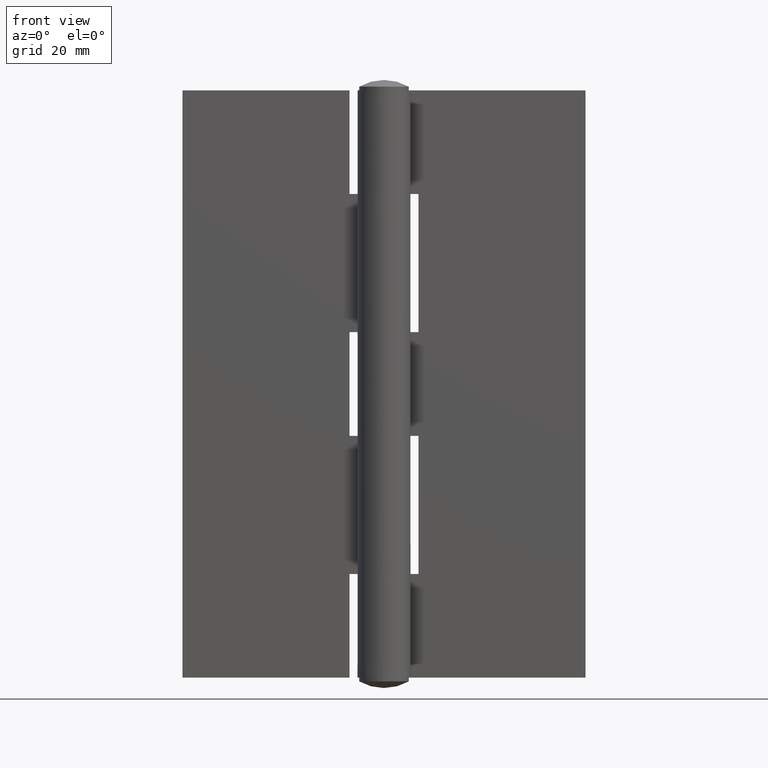
[diagram: clean part render]
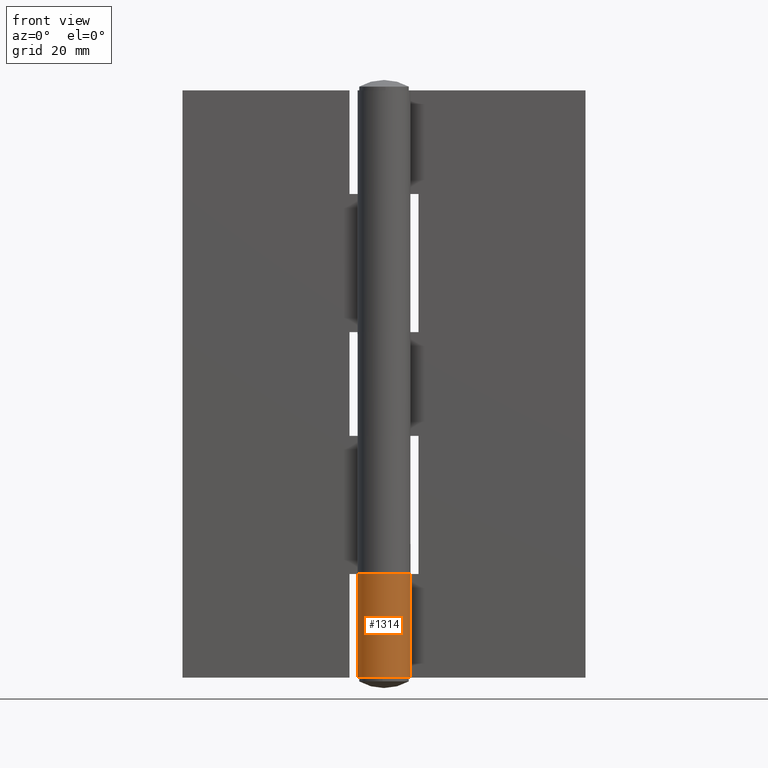
[diagram: same view with one face highlighted and labeled with its STEP entity id]
A machine part, front view. The second image highlights one B-rep face of the part: STEP entity #1314.
In plain terms, the highlighted face is a freeform B-spline surface patch.
Its self-contained STEP definition (entity closure, byte-faithful):
#1201=CARTESIAN_POINT('',(0.044431404157365,4.599785413508366,18.450000000000411));
#1202=CARTESIAN_POINT('',(0.044431404157365,4.599785413508366,-0.461250000000010));
#1203=CARTESIAN_POINT('',(-5.772945679902441,4.655978085366184,18.450000000000419));
#1204=CARTESIAN_POINT('',(-5.772945679902441,4.655978085366184,-0.461250000000010));
#1205=CARTESIAN_POINT('',(-4.486044189340297,-1.017549768456658,18.450000000000411));
#1206=CARTESIAN_POINT('',(-4.486044189340297,-1.017549768456658,-0.461250000000010));
#1207=CARTESIAN_POINT('',(-3.199142698778154,-6.691077622279499,18.450000000000419));
#1208=CARTESIAN_POINT('',(-3.199142698778154,-6.691077622279499,-0.461250000000010));
#1209=CARTESIAN_POINT('',(2.024674569670186,-4.130459161755635,18.450000000000411));
#1210=CARTESIAN_POINT('',(2.024674569670186,-4.130459161755635,-0.461250000000010));
#1211=CARTESIAN_POINT('',(7.248491838118526,-1.569840701231771,18.450000000000419));
#1212=CARTESIAN_POINT('',(7.248491838118526,-1.569840701231771,-0.461250000000010));
#1213=CARTESIAN_POINT('',(3.552200011631167,2.922648640765316,18.450000000000411));
#1214=CARTESIAN_POINT('',(3.552200011631167,2.922648640765316,-0.461250000000010));
#1222=(BOUNDED_SURFACE()B_SPLINE_SURFACE(1,2,((#1201,#1203,#1205,#1207,#1209,#1211,#1213),(#1202,#1204,#1206,#1208,#1210,#1212,#1214)),.UNSPECIFIED.,.F.,.F.,.U.)B_SPLINE_SURFACE_WITH_KNOTS((2,2),(3,2,2,3),(0.0,18.911250000000418),(0.0,8.908117562109675,17.816235124219350,26.724352686329031),.UNSPECIFIED.)GEOMETRIC_REPRESENTATION_ITEM()RATIONAL_B_SPLINE_SURFACE(((1.0,0.620235491268260,1.0,0.620235491268260,1.0,0.620235491268260,1.0),(1.0,0.620235491268260,1.0,0.620235491268260,1.0,0.620235491268260,1.0)))REPRESENTATION_ITEM('')SURFACE());
#1223=CARTESIAN_POINT('',(3.687479559265210,2.749999000000000,18.000000000000249));
#1224=VERTEX_POINT('',#1223);
#1225=CARTESIAN_POINT('',(0.0,4.599998000000000,18.0));
#1226=VERTEX_POINT('',#1225);
#1227=CARTESIAN_POINT('',(3.687479559265210,2.749999000000000,18.000000000000249));
#1228=CARTESIAN_POINT('',(3.850426777681129,2.531540773315134,18.000000000000249));
#1229=CARTESIAN_POINT('',(4.154207155316249,2.038139663647719,18.000000000000320));
#1230=CARTESIAN_POINT('',(4.469477625384375,1.210021899352482,18.000000000000352));
#1231=CARTESIAN_POINT('',(4.615056621835921,0.335953307980514,18.000000000000359));
#1232=CARTESIAN_POINT('',(4.596050582477641,-0.484686637869946,18.000000000000409));
#1233=CARTESIAN_POINT('',(4.456021471922070,-1.211039484383776,18.000000000000409));
#1234=CARTESIAN_POINT('',(4.186473031889827,-1.968241507287495,18.000000000000298));
#1235=CARTESIAN_POINT('',(3.677331985762350,-2.847591349749100,18.000000000000529));
#1236=CARTESIAN_POINT('',(2.924347906114630,-3.606992362668294,18.000000000000341));
#1237=CARTESIAN_POINT('',(2.116861615624397,-4.106738551935442,18.000000000000320));
#1238=CARTESIAN_POINT('',(1.418765454871620,-4.395606047114636,18.000000000000298));
#1239=CARTESIAN_POINT('',(0.511419931220524,-4.613532030491716,18.000000000000579));
#1240=CARTESIAN_POINT('',(-0.525605827167161,-4.619222804163976,17.999999999999371));
#1241=CARTESIAN_POINT('',(-1.510668242436616,-4.372270313510778,18.000000000001268));
#1242=CARTESIAN_POINT('',(-2.315178901120932,-4.004873378843360,17.999999999998579));
#1243=CARTESIAN_POINT('',(-2.948729309344417,-3.560787199748240,18.000000000000199));
#1244=CARTESIAN_POINT('',(-3.517700934232514,-2.993494640249779,18.000000000000600));
#1245=CARTESIAN_POINT('',(-3.925494402730665,-2.434295408881597,17.999999999999648));
#1246=CARTESIAN_POINT('',(-4.284353140850956,-1.733445115884081,18.000000000000039));
#1247=CARTESIAN_POINT('',(-4.556208590893764,-0.873142699158450,17.999999999999861));
#1248=CARTESIAN_POINT('',(-4.634775761162805,0.093171492421394,17.999999999999901));
#1249=CARTESIAN_POINT('',(-4.506469683634604,1.050313796769771,17.999999999999840));
#1250=CARTESIAN_POINT('',(-4.201218193948525,1.967512304623658,17.999999999999861));
#1251=CARTESIAN_POINT('',(-3.706041095724257,2.782104025584396,17.999999999999840));
#1252=CARTESIAN_POINT('',(-3.044297441353944,3.484873961092984,17.999999999999879));
#1253=CARTESIAN_POINT('',(-2.209149680262337,4.090633948807423,17.999999999999901));
#1254=CARTESIAN_POINT('',(-1.154280097402581,4.507476762702252,17.999999999999940));
#1255=CARTESIAN_POINT('',(-0.352677328011434,4.600045016414300,17.999999999999979));
#1256=CARTESIAN_POINT('',(0.0,4.599998000000000,18.0));
#1257=B_SPLINE_CURVE_WITH_KNOTS('',3,(#1227,#1228,#1229,#1230,#1231,#1232,#1233,#1234,#1235,#1236,#1237,#1238,#1239,#1240,#1241,#1242,#1243,#1244,#1245,#1246,#1247,#1248,#1249,#1250,#1251,#1252,#1253,#1254,#1255,#1256),.UNSPECIFIED.,.F.,.U.,(4,1,1,1,1,1,1,1,1,1,1,1,1,1,1,1,1,1,1,1,1,1,1,1,1,1,1,4),(0.000000589332171,0.817607934900142,1.731422678651256,2.645233316383493,3.462860689266261,4.184308623806032,4.857615814617116,5.867671239363776,7.214245887262205,8.031876744798762,8.705211146384050,9.474750063331326,10.821445703718631,11.783363112464080,12.504686865529299,13.466596898880580,14.091848064382241,14.909486509963120,15.534735102657089,16.448546332249808,17.602854081824258,18.420505021301249,19.334221175585409,20.488528927210030,21.258048729904310,22.219970905364129,23.566667013460179,24.624715739923658),.UNSPECIFIED.);
#1258=EDGE_CURVE('',#1224,#1226,#1257,.T.);
#1259=ORIENTED_EDGE('',*,*,#1258,.T.);
#1260=CARTESIAN_POINT('',(0.004289521649760,4.599998000000000,18.0));
#1261=VERTEX_POINT('',#1260);
#1262=CARTESIAN_POINT('',(0.0,4.599998000000000,18.0));
#1263=CARTESIAN_POINT('',(0.004289521649760,4.599998000000000,18.0));
#1264=QUASI_UNIFORM_CURVE('',1,(#1262,#1263),.UNSPECIFIED.,.F.,.U.);
#1265=EDGE_CURVE('',#1226,#1261,#1264,.T.);
#1266=ORIENTED_EDGE('',*,*,#1265,.T.);
#1267=CARTESIAN_POINT('',(0.004289521649760,4.599998000000000,0.0));
#1268=VERTEX_POINT('',#1267);
#1269=CARTESIAN_POINT('',(0.004289521649760,4.599998000000000,18.0));
#1270=CARTESIAN_POINT('',(0.004289521649760,4.599998000000000,0.0));
#1271=QUASI_UNIFORM_CURVE('',1,(#1269,#1270),.UNSPECIFIED.,.F.,.U.);
#1272=EDGE_CURVE('',#1261,#1268,#1271,.T.);
#1273=ORIENTED_EDGE('',*,*,#1272,.T.);
#1274=CARTESIAN_POINT('',(3.687479559265210,2.749999000000000,0.0));
#1275=VERTEX_POINT('',#1274);
#1276=CARTESIAN_POINT('',(3.687479559265210,2.749999000000000,0.0));
#1277=CARTESIAN_POINT('',(3.984925165880717,2.351699614369304,0.0));
#1278=CARTESIAN_POINT('',(4.313709951992317,1.717061660151799,0.0));
#1279=CARTESIAN_POINT('',(4.554897471999554,0.766815465490890,0.0));
#1280=CARTESIAN_POINT('',(4.637664405224437,-0.130905462828285,0.0));
#1281=CARTESIAN_POINT('',(4.513158771366075,-1.061217309184518,0.0));
#1282=CARTESIAN_POINT('',(4.184453719047399,-1.968576257113143,0.0));
#1283=CARTESIAN_POINT('',(3.715940051190415,-2.777225688953218,0.0));
#1284=CARTESIAN_POINT('',(2.977927005953719,-3.569519479168358,0.0));
#1285=CARTESIAN_POINT('',(2.120578050190413,-4.118698692871015,0.0));
#1286=CARTESIAN_POINT('',(1.249425400259085,-4.452398771151519,0.0));
#1287=CARTESIAN_POINT('',(0.299642158946880,-4.633354207098492,0.0));
#1288=CARTESIAN_POINT('',(-0.605583503419273,-4.590597965482434,0.0));
#1289=CARTESIAN_POINT('',(-1.447856190066216,-4.383781656841655,0.0));
#1290=CARTESIAN_POINT('',(-2.178294404217557,-4.086111780588237,0.0));
#1291=CARTESIAN_POINT('',(-3.065588438049509,-3.497681074944814,0.0));
#1292=CARTESIAN_POINT('',(-3.853633538053271,-2.615182063448376,0.0));
#1293=CARTESIAN_POINT('',(-4.324109418338835,-1.657894388533401,0.0));
#1294=CARTESIAN_POINT('',(-4.570501652853831,-0.725214837946894,0.0));
#1295=CARTESIAN_POINT('',(-4.641817834608919,0.289147273584736,0.0));
#1296=CARTESIAN_POINT('',(-4.435020628802509,1.387277367199870,0.0));
#1297=CARTESIAN_POINT('',(-4.029944545593211,2.265721987049419,0.0));
#1298=CARTESIAN_POINT('',(-3.555026364701358,2.953404167387503,0.0));
#1299=CARTESIAN_POINT('',(-3.049321509057190,3.473070867864365,0.0));
#1300=CARTESIAN_POINT('',(-2.310075027793753,4.014146456634217,0.0));
#1301=CARTESIAN_POINT('',(-1.326571095155402,4.468806315376833,0.0));
#1302=CARTESIAN_POINT('',(-0.460730365293999,4.600659926811534,0.0));
#1303=CARTESIAN_POINT('',(0.004289521649760,4.599998000000000,0.0));
#1304=B_SPLINE_CURVE_WITH_KNOTS('',3,(#1276,#1277,#1278,#1279,#1280,#1281,#1282,#1283,#1284,#1285,#1286,#1287,#1288,#1289,#1290,#1291,#1292,#1293,#1294,#1295,#1296,#1297,#1298,#1299,#1300,#1301,#1302,#1303),.UNSPECIFIED.,.F.,.U.,(4,1,1,1,1,1,1,1,1,1,1,1,1,1,1,1,1,1,1,1,1,1,1,1,1,4),(0.000000589814075,1.491171802012467,2.116539866779906,2.934317089102983,4.185037923665018,4.906607635803105,5.820532225492652,6.974960233056688,8.129481997195402,8.851050707147856,9.765020621655971,11.015736476328010,11.544874189354321,12.362546415803511,13.372738559337130,14.719669401524790,15.874176887041569,16.547618668460821,17.605922128687428,18.904657365555622,19.866738472706562,20.492099871020340,21.406070386957630,22.031427959620320,23.234025647180960,24.629007596606971),.UNSPECIFIED.);
#1305=EDGE_CURVE('',#1275,#1268,#1304,.T.);
#1306=ORIENTED_EDGE('',*,*,#1305,.F.);
#1307=CARTESIAN_POINT('',(3.687479559265210,2.749999000000000,18.000000000000249));
#1308=CARTESIAN_POINT('',(3.687479559265210,2.749999000000000,0.0));
#1309=QUASI_UNIFORM_CURVE('',1,(#1307,#1308),.UNSPECIFIED.,.F.,.U.);
#1310=EDGE_CURVE('',#1224,#1275,#1309,.T.);
#1311=ORIENTED_EDGE('',*,*,#1310,.F.);
#1312=EDGE_LOOP('',(#1259,#1266,#1273,#1306,#1311));
#1313=FACE_OUTER_BOUND('',#1312,.T.);
#1314=ADVANCED_FACE('',(#1313),#1222,.T.);